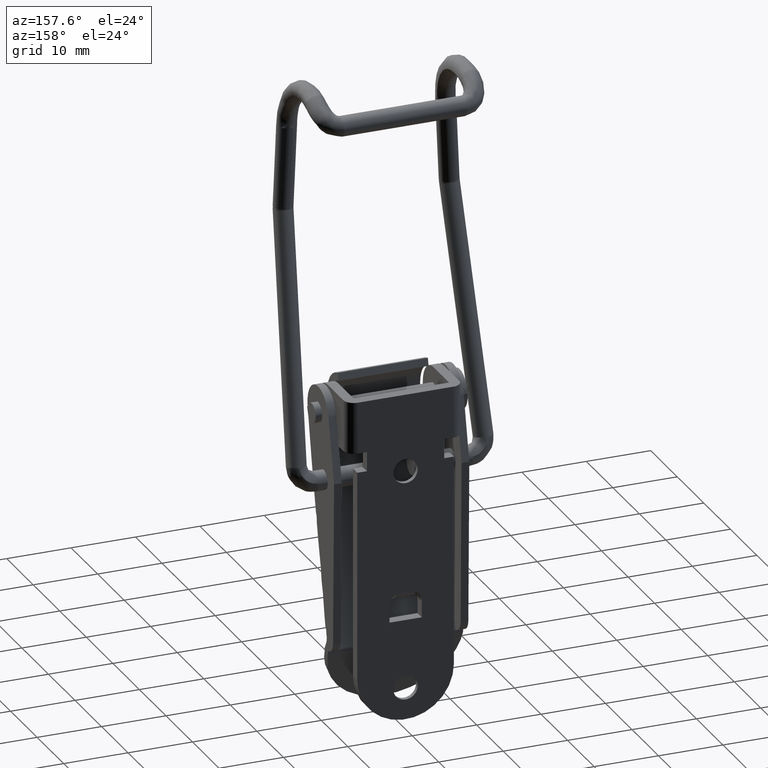
[diagram: clean part render]
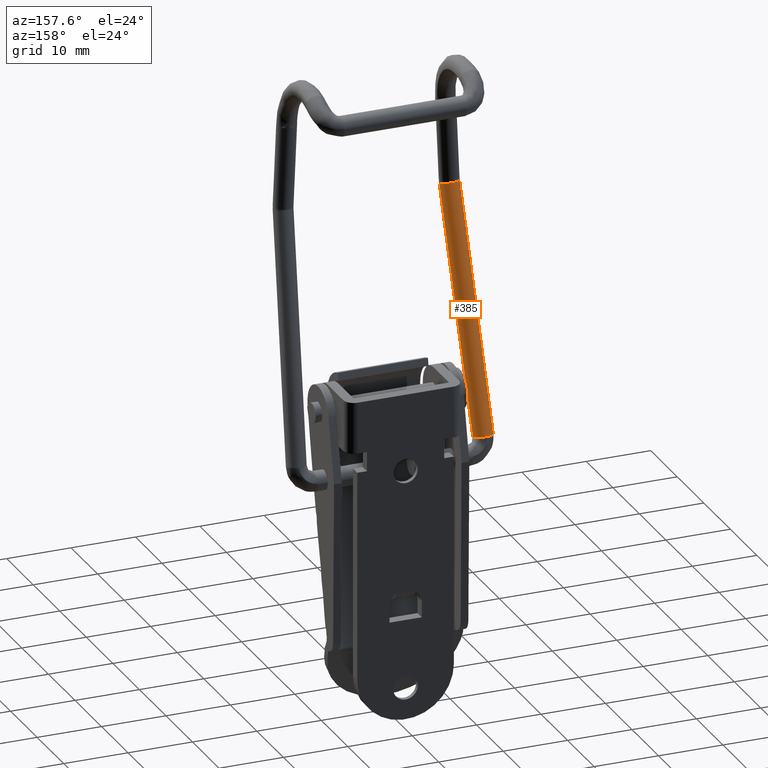
[diagram: same view with one face highlighted and labeled with its STEP entity id]
A machine part, auxiliary view. The second image highlights one B-rep face of the part: STEP entity #385.
In plain terms, the highlighted face is a freeform B-spline surface patch.
Its self-contained STEP definition (entity closure, byte-faithful):
#253=CARTESIAN_POINT('',(-13.316374042392766,0.889618143785963,-8.420160866647862));
#254=CARTESIAN_POINT('',(-13.291648289177552,0.923961751376645,-8.412943989616446));
#255=CARTESIAN_POINT('',(-13.268967411197981,0.959605084799511,-8.405324270128748));
#256=CARTESIAN_POINT('',(-12.476472007332704,2.205023271057641,-8.139082695257521));
#257=CARTESIAN_POINT('',(-13.748451263275999,2.963435900386202,-7.900589391106506));
#258=CARTESIAN_POINT('',(-15.020430519219294,3.721848529714762,-7.662096086955494));
#259=CARTESIAN_POINT('',(-15.812925923084579,2.476430343456632,-7.928337661826721));
#260=CARTESIAN_POINT('',(-11.644776537410813,-8.384889531800653,29.988217662893454));
#261=CARTESIAN_POINT('',(-11.620050784195604,-8.350545924209969,29.995434539924872));
#262=CARTESIAN_POINT('',(-11.597369906216031,-8.314902590787105,30.003054259412568));
#263=CARTESIAN_POINT('',(-10.804874502350751,-7.069484404528975,30.269295834283803));
#264=CARTESIAN_POINT('',(-12.076853758294050,-6.311071775200413,30.507789138434809));
#265=CARTESIAN_POINT('',(-13.348833014237346,-5.552659145871853,30.746282442585819));
#266=CARTESIAN_POINT('',(-14.141328418102630,-6.798077332129983,30.480040867714589));
#274=(BOUNDED_SURFACE()B_SPLINE_SURFACE(2,1,((#253,#260),(#254,#261),(#255,#262),(#256,#263),(#257,#264),(#258,#265),(#259,#266)),.UNSPECIFIED.,.F.,.F.,.U.)B_SPLINE_SURFACE_WITH_KNOTS((3,2,2,3),(2,2),(3.078760800517997,3.141592653589793,4.712388980384690,6.283185307179586),(0.0,39.547620309086959),.UNSPECIFIED.)GEOMETRIC_REPRESENTATION_ITEM()RATIONAL_B_SPLINE_SURFACE(((0.977505800795127,0.977505800795127),(0.988284271247462,0.988284271247462),(1.0,1.0),(0.707106781186548,0.707106781186548),(1.0,1.0),(0.707106781186548,0.707106781186548),(1.0,1.0)))REPRESENTATION_ITEM('')SURFACE());
#275=CARTESIAN_POINT('',(-11.453330085767030,-6.973565814490240,29.327492599794741));
#276=VERTEX_POINT('',#275);
#277=CARTESIAN_POINT('',(-11.685547208265501,-8.158682027506821,29.051427942617231));
#278=VERTEX_POINT('',#277);
#279=CARTESIAN_POINT('',(-11.453330085767030,-6.973565814490240,29.327492599794741));
#280=CARTESIAN_POINT('',(-11.293838005431258,-7.614605289591609,29.165758823635521));
#281=CARTESIAN_POINT('',(-11.685547208265501,-8.158682027506821,29.051427942617227));
#289=(BOUNDED_CURVE()B_SPLINE_CURVE(2,(#279,#280,#281),.UNSPECIFIED.,.F.,.U.)B_SPLINE_CURVE_WITH_KNOTS((3,3),(0.0,0.134954720076118),.UNSPECIFIED.)CURVE()GEOMETRIC_REPRESENTATION_ITEM()RATIONAL_B_SPLINE_CURVE((1.0,0.841890710571350,0.854482180312918))REPRESENTATION_ITEM(''));
#290=EDGE_CURVE('',#276,#278,#289,.T.);
#291=ORIENTED_EDGE('',*,*,#290,.T.);
#292=CARTESIAN_POINT('',(-13.276597778043270,0.668927895140210,-7.506219673833527));
#293=VERTEX_POINT('',#292);
#294=CARTESIAN_POINT('',(-13.276597778043270,0.668927895140210,-7.506219673833527));
#295=CARTESIAN_POINT('',(-11.685547208265501,-8.158682027506821,29.051427942617231));
#296=QUASI_UNIFORM_CURVE('',1,(#294,#295),.UNSPECIFIED.,.F.,.U.);
#297=EDGE_CURVE('',#293,#278,#296,.T.);
#298=ORIENTED_EDGE('',*,*,#297,.F.);
#299=CARTESIAN_POINT('',(-13.044380655544829,1.854044108156658,-7.230155016656048));
#300=VERTEX_POINT('',#299);
#301=CARTESIAN_POINT('',(-13.044380655544829,1.854044108156658,-7.230155016656048));
#302=CARTESIAN_POINT('',(-12.884888575209080,1.213004633055363,-7.391888792815246));
#303=CARTESIAN_POINT('',(-13.276597778043271,0.668927895140210,-7.506219673833527));
#311=(BOUNDED_CURVE()B_SPLINE_CURVE(2,(#301,#302,#303),.UNSPECIFIED.,.F.,.U.)B_SPLINE_CURVE_WITH_KNOTS((3,3),(0.0,0.134954720076104),.UNSPECIFIED.)CURVE()GEOMETRIC_REPRESENTATION_ITEM()RATIONAL_B_SPLINE_CURVE((1.0,0.841890710571365,0.854482180312916))REPRESENTATION_ITEM(''));
#312=EDGE_CURVE('',#300,#293,#311,.T.);
#313=ORIENTED_EDGE('',*,*,#312,.F.);
#314=CARTESIAN_POINT('',(-14.444685653798951,2.954945186114136,-6.903375748224262));
#315=VERTEX_POINT('',#314);
#316=CARTESIAN_POINT('',(-14.444685653798954,2.954945186114136,-6.903375748224262));
#317=CARTESIAN_POINT('',(-13.310735926665522,2.924594086752608,-6.960056064359684));
#318=CARTESIAN_POINT('',(-13.044380655544829,1.854044108156658,-7.230155016656048));
#326=(BOUNDED_CURVE()B_SPLINE_CURVE(2,(#316,#317,#318),.UNSPECIFIED.,.F.,.U.)B_SPLINE_CURVE_WITH_KNOTS((3,3),(0.796211353312807,1.0),.UNSPECIFIED.)CURVE()GEOMETRIC_REPRESENTATION_ITEM()RATIONAL_B_SPLINE_CURVE((0.911735113402525,0.761246749256603,1.0))REPRESENTATION_ITEM(''));
#327=EDGE_CURVE('',#315,#300,#326,.T.);
#328=ORIENTED_EDGE('',*,*,#327,.F.);
#329=CARTESIAN_POINT('',(-15.773149530979570,2.255740295580563,-7.014396426092477));
#330=VERTEX_POINT('',#329);
#331=CARTESIAN_POINT('',(-15.773149530979570,2.255740295580563,-7.014396426092477));
#332=CARTESIAN_POINT('',(-15.448930954781106,2.765254194232966,-6.905474160665158));
#333=CARTESIAN_POINT('',(-14.852942807924389,2.911190758670300,-6.896173130488539));
#334=CARTESIAN_POINT('',(-14.651633580320357,2.960484317981857,-6.893031485456415));
#335=CARTESIAN_POINT('',(-14.444685653798953,2.954945186114136,-6.903375748224262));
#343=(BOUNDED_CURVE()B_SPLINE_CURVE(2,(#331,#332,#333,#334,#335),.UNSPECIFIED.,.F.,.U.)B_SPLINE_CURVE_WITH_KNOTS((3,2,3),(0.626316806240590,0.750000000000000,0.796211353312807),.UNSPECIFIED.)CURVE()GEOMETRIC_REPRESENTATION_ITEM()RATIONAL_B_SPLINE_CURVE((0.853569642452331,0.855096125066714,1.0,0.945860031929945,0.911735113402525))REPRESENTATION_ITEM(''));
#344=EDGE_CURVE('',#330,#315,#343,.T.);
#345=ORIENTED_EDGE('',*,*,#344,.F.);
#346=CARTESIAN_POINT('',(-14.182098959605851,-6.571869624558409,29.543251190894441));
#347=VERTEX_POINT('',#346);
#348=CARTESIAN_POINT('',(-15.773149530979570,2.255740295580563,-7.014396426092477));
#349=CARTESIAN_POINT('',(-14.182098959605851,-6.571869624558409,29.543251190894441));
#350=QUASI_UNIFORM_CURVE('',1,(#348,#349),.UNSPECIFIED.,.F.,.U.);
#351=EDGE_CURVE('',#330,#347,#350,.T.);
#352=ORIENTED_EDGE('',*,*,#351,.T.);
#353=CARTESIAN_POINT('',(-13.078858854789640,-5.883137025417221,29.661545233620931));
#354=VERTEX_POINT('',#353);
#355=CARTESIAN_POINT('',(-14.182098959605851,-6.571869624558409,29.543251190894434));
#356=CARTESIAN_POINT('',(-13.857880381578626,-6.062355727575350,29.652173455839073));
#357=CARTESIAN_POINT('',(-13.261892238146590,-5.916419163976598,29.661474485962248));
#358=CARTESIAN_POINT('',(-13.171380206550841,-5.894255946468007,29.662887022674031));
#359=CARTESIAN_POINT('',(-13.078858854789647,-5.883137025417221,29.661545233620931));
#367=(BOUNDED_CURVE()B_SPLINE_CURVE(2,(#355,#356,#357,#358,#359),.UNSPECIFIED.,.F.,.U.)B_SPLINE_CURVE_WITH_KNOTS((3,2,3),(0.626316806848315,0.750000000000000,0.771415539923081),.UNSPECIFIED.)CURVE()GEOMETRIC_REPRESENTATION_ITEM()RATIONAL_B_SPLINE_CURVE((0.853569642467332,0.855096125778708,1.0,0.974910134317203,0.954118772795964))REPRESENTATION_ITEM(''));
#368=EDGE_CURVE('',#347,#354,#367,.T.);
#369=ORIENTED_EDGE('',*,*,#368,.T.);
#370=CARTESIAN_POINT('',(-13.078858854789642,-5.883137025417221,29.661545233620931));
#371=CARTESIAN_POINT('',(-11.763947448640199,-5.725115165189131,29.642475757154841));
#372=CARTESIAN_POINT('',(-11.453330085767030,-6.973565814490240,29.327492599794741));
#380=(BOUNDED_CURVE()B_SPLINE_CURVE(2,(#370,#371,#372),.UNSPECIFIED.,.F.,.U.)B_SPLINE_CURVE_WITH_KNOTS((3,3),(0.771415539923082,1.0),.UNSPECIFIED.)CURVE()GEOMETRIC_REPRESENTATION_ITEM()RATIONAL_B_SPLINE_CURVE((0.954118772795962,0.732196646869345,1.0))REPRESENTATION_ITEM(''));
#381=EDGE_CURVE('',#354,#276,#380,.T.);
#382=ORIENTED_EDGE('',*,*,#381,.T.);
#383=EDGE_LOOP('',(#291,#298,#313,#328,#345,#352,#369,#382));
#384=FACE_OUTER_BOUND('',#383,.T.);
#385=ADVANCED_FACE('',(#384),#274,.T.);